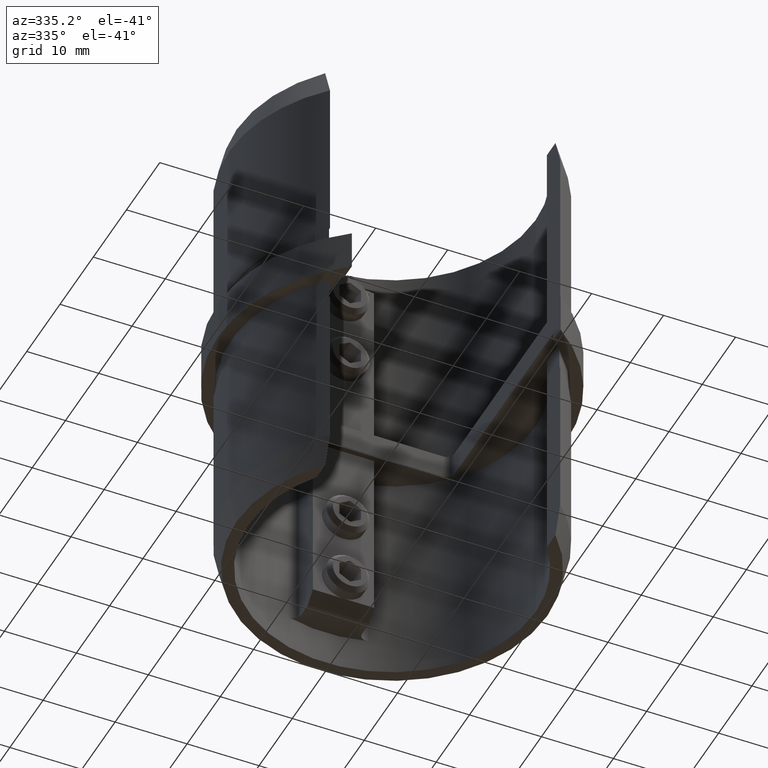
[diagram: clean part render]
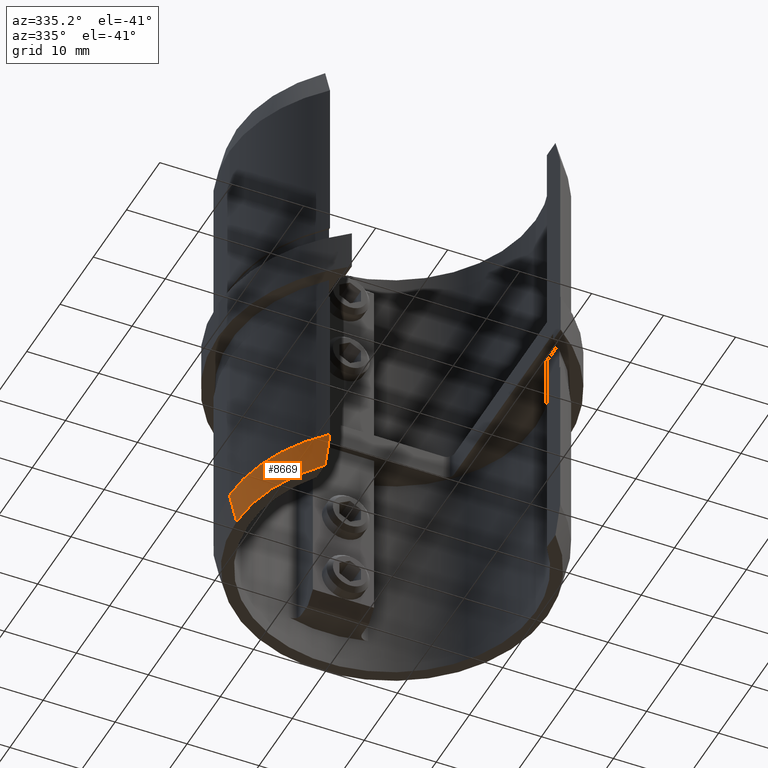
[diagram: same view with one face highlighted and labeled with its STEP entity id]
A machine part, auxiliary view. The second image highlights one B-rep face of the part: STEP entity #8669.
In plain terms, the highlighted conical surface has half-angle 14.036 deg.
Its self-contained STEP definition (entity closure, byte-faithful):
#685 = VERTEX_POINT ( 'NONE', #15142 ) ;
#1129 = EDGE_CURVE ( 'NONE', #6224, #18554, #15794, .T. ) ;
#1462 = CARTESIAN_POINT ( 'NONE',  ( -21.59999999999998700, 0.0000000000000000000, -32.75000000000000000 ) ) ;
#2115 = CIRCLE ( 'NONE', #11057, 22.60000000000000100 ) ;
#2273 = DIRECTION ( 'NONE',  ( -1.000000000000000000, 0.0000000000000000000, 0.0000000000000000000 ) ) ;
#3617 = CARTESIAN_POINT ( 'NONE',  ( -15.99999999999999600, -15.96120296218302500, -28.74999999999990100 ) ) ;
#3676 = CONICAL_SURFACE ( 'NONE', #7785, 21.59999999999998700, 0.2449786631268616700 ) ;
#3770 = AXIS2_PLACEMENT_3D ( 'NONE', #9420, #15944, #9619 ) ;
#4001 = EDGE_LOOP ( 'NONE', ( #15022, #19873, #5963, #16916 ) ) ;
#4461 = CARTESIAN_POINT ( 'NONE',  ( -21.59999999999998700, 0.0000000000000000000, -32.75000000000000000 ) ) ;
#5184 = EDGE_CURVE ( 'NONE', #13695, #685, #14822, .T. ) ;
#5963 = ORIENTED_EDGE ( 'NONE', *, *, #1129, .T. ) ;
#6224 = VERTEX_POINT ( 'NONE', #11471 ) ;
#6435 = CARTESIAN_POINT ( 'NONE',  ( -15.99999999999999600, -15.48791372974197600, -30.08703814138176100 ) ) ;
#7785 = AXIS2_PLACEMENT_3D ( 'NONE', #8420, #18247, #2273 ) ;
#8420 = CARTESIAN_POINT ( 'NONE',  ( 0.0000000000000000000, 0.0000000000000000000, -32.75000000000000000 ) ) ;
#8669 = ADVANCED_FACE ( 'NONE', ( #15572 ), #3676, .T. ) ;
#8694 = DIRECTION ( 'NONE',  ( 0.0000000000000000000, 0.0000000000000000000, -1.000000000000000000 ) ) ;
#9420 = CARTESIAN_POINT ( 'NONE',  ( 0.0000000000000000000, 0.0000000000000000000, -32.75000000000000000 ) ) ;
#9553 = CARTESIAN_POINT ( 'NONE',  ( -15.99999999999999600, -15.00536405332283100, -31.42071817434334600 ) ) ;
#9619 = DIRECTION ( 'NONE',  ( 1.000000000000000000, 0.0000000000000000000, 0.0000000000000000000 ) ) ;
#10508 = VECTOR ( 'NONE', #20636, 1000.000000000000000 ) ;
#11057 = AXIS2_PLACEMENT_3D ( 'NONE', #12022, #8694, #19999 ) ;
#11471 = CARTESIAN_POINT ( 'NONE',  ( -15.99999999999999600, -14.51068571777362600, -32.75000000000000000 ) ) ;
#12022 = CARTESIAN_POINT ( 'NONE',  ( 0.0000000000000000000, 0.0000000000000000000, -28.74999999999990100 ) ) ;
#12809 = CARTESIAN_POINT ( 'NONE',  ( -15.99999999999999600, -14.51068571777362600, -32.75000000000000000 ) ) ;
#13199 = CIRCLE ( 'NONE', #3770, 21.59999999999998700 ) ;
#13695 = VERTEX_POINT ( 'NONE', #4461 ) ;
#14438 = EDGE_CURVE ( 'NONE', #18554, #685, #2115, .T. ) ;
#14822 = LINE ( 'NONE', #1462, #10508 ) ;
#15022 = ORIENTED_EDGE ( 'NONE', *, *, #5184, .F. ) ;
#15142 = CARTESIAN_POINT ( 'NONE',  ( -22.60000000000000100, 0.0000000000000000000, -28.74999999999990100 ) ) ;
#15572 = FACE_OUTER_BOUND ( 'NONE', #4001, .T. ) ;
#15794 = B_SPLINE_CURVE_WITH_KNOTS ( 'NONE', 3,
 ( #12809, #9553, #6435, #17563 ),
 .UNSPECIFIED., .F., .F.,
 ( 4, 4 ),
 ( 0.0000000000000000000, 0.004254879584233830200 ),
 .UNSPECIFIED. ) ;
#15944 = DIRECTION ( 'NONE',  ( -0.0000000000000000000, -0.0000000000000000000, 1.000000000000000000 ) ) ;
#16063 = EDGE_CURVE ( 'NONE', #13695, #6224, #13199, .T. ) ;
#16916 = ORIENTED_EDGE ( 'NONE', *, *, #14438, .T. ) ;
#17563 = CARTESIAN_POINT ( 'NONE',  ( -15.99999999999999600, -15.96120296218302500, -28.74999999999990100 ) ) ;
#18247 = DIRECTION ( 'NONE',  ( 0.0000000000000000000, 0.0000000000000000000, 1.000000000000000000 ) ) ;
#18554 = VERTEX_POINT ( 'NONE', #3617 ) ;
#19873 = ORIENTED_EDGE ( 'NONE', *, *, #16063, .T. ) ;
#19999 = DIRECTION ( 'NONE',  ( 1.000000000000000000, 1.776356839400250500E-015, 0.0000000000000000000 ) ) ;
#20636 = DIRECTION ( 'NONE',  ( -0.2425356250363306100, 0.0000000000000000000, 0.9701425001453325400 ) ) ;